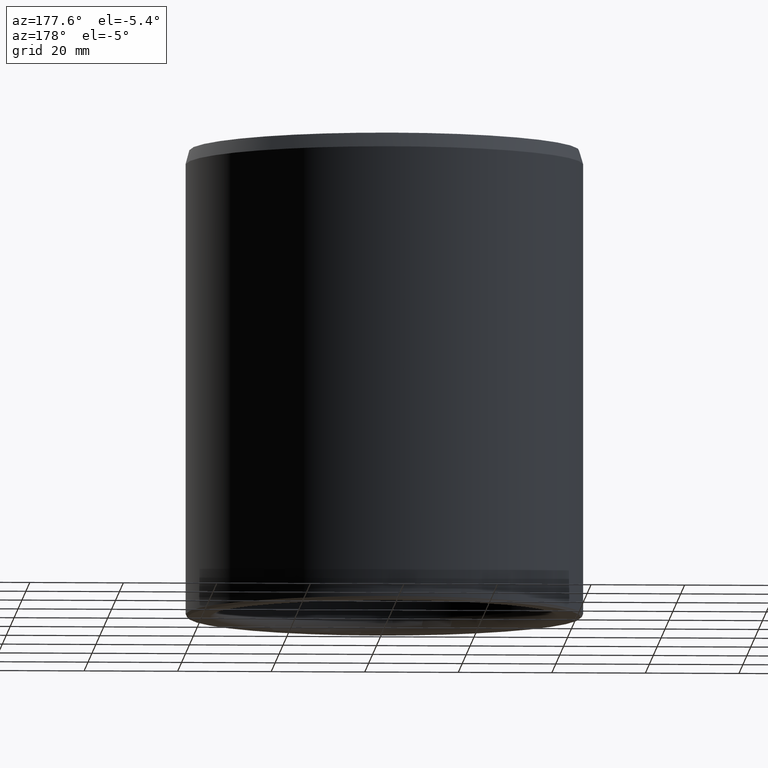
[diagram: clean part render]
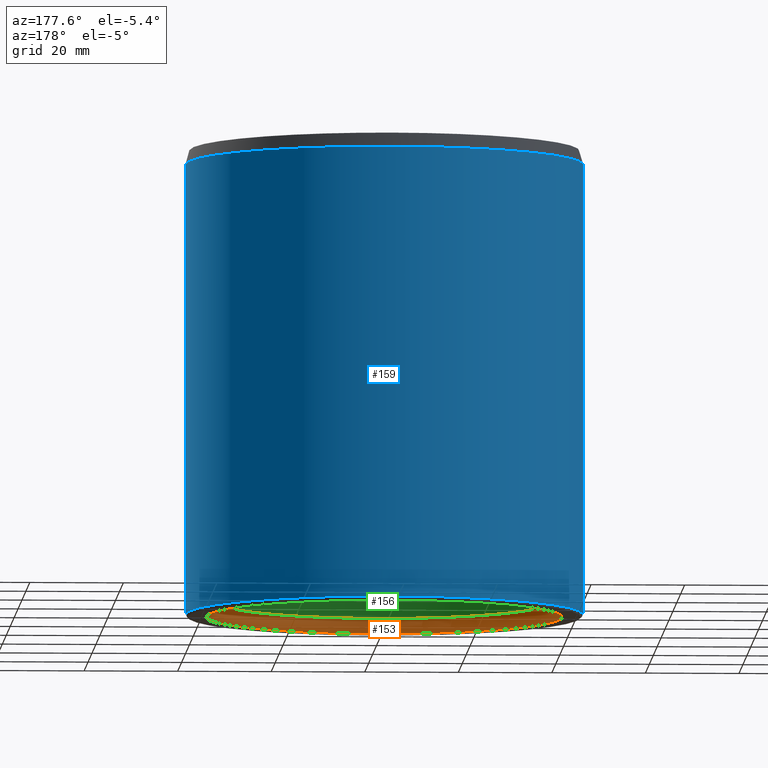
[diagram: same view with three faces highlighted in distinct colors, each labeled with its STEP entity id]
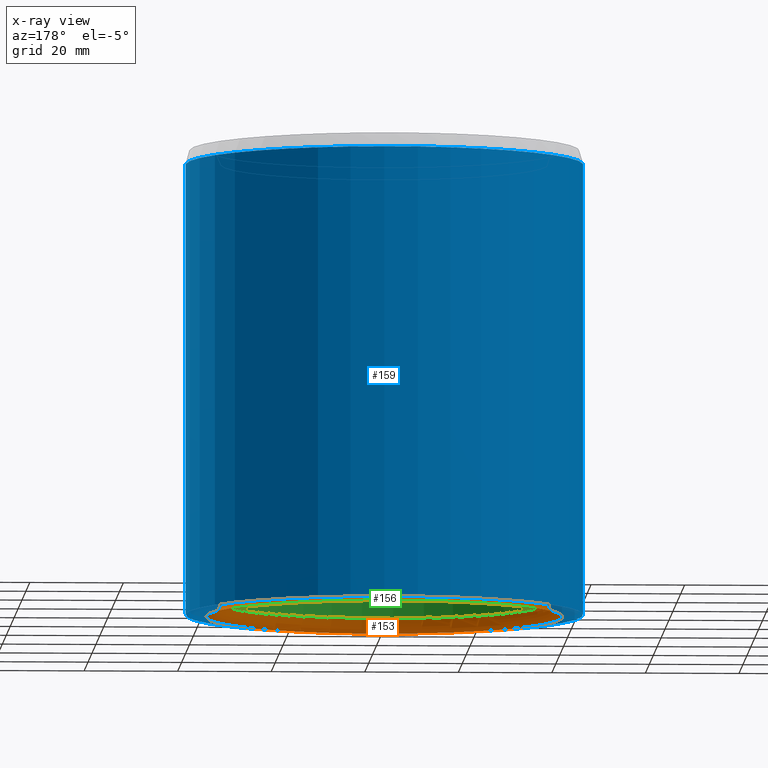
[diagram: x-ray of the same camera — body ghosted, the three highlighted faces saturated]
A machine part, auxiliary view with three faces highlighted in distinct colors.
The next image is the same camera in x-ray (body ghosted, the three faces saturated) — at least one of them is partly hidden behind the body in this view.
Their STEP definitions:

[orange] entity #153 — the highlighted toroidal blend (fillet) surface has major radius 38 mm and minor (blend) radius 3 mm.
#153=ADVANCED_FACE('',(#163,#164),#165,.T.);
#163=FACE_OUTER_BOUND('',#188,.T.);
#164=FACE_OUTER_BOUND('',#189,.T.);
#165=TOROIDAL_SURFACE('',#190,0.038,0.003);
#188=EDGE_LOOP('',(#212));
#189=EDGE_LOOP('',(#213));
#190=AXIS2_PLACEMENT_3D('',#214,#215,#216);
#212=ORIENTED_EDGE('',*,*,#252,.F.);
#213=ORIENTED_EDGE('',*,*,#253,.F.);
#214=CARTESIAN_POINT('',(0.0,1.83697019872103E-019,0.003));
#215=DIRECTION('',(0.0,-6.12323399573677E-017,-1.0));
#216=DIRECTION('',(0.0,1.0,-6.12323399573677E-017));
#252=EDGE_CURVE('',#260,#260,#261,.F.);
#253=EDGE_CURVE('',#262,#262,#263,.T.);
#260=VERTEX_POINT('',#276);
#261=CIRCLE('',#277,0.038);
#262=VERTEX_POINT('',#278);
#263=CIRCLE('',#279,0.035);
#276=CARTESIAN_POINT('',(0.0,0.038,-1.89314804938577E-018));
#277=AXIS2_PLACEMENT_3D('',#292,#293,#294);
#278=CARTESIAN_POINT('',(0.0,0.035,0.003));
#279=AXIS2_PLACEMENT_3D('',#295,#296,#297);
#292=CARTESIAN_POINT('',(0.0,2.40741243048404E-035,4.33680868994202E-019));
#293=DIRECTION('',(0.0,-6.12323399573677E-017,-1.0));
#294=DIRECTION('',(0.0,1.0,-6.12323399573677E-017));
#295=CARTESIAN_POINT('',(0.0,1.83697019872103E-019,0.003));
#296=DIRECTION('',(0.0,-6.12323399573677E-017,-1.0));
#297=DIRECTION('',(0.0,1.0,-6.12323399573677E-017));

[blue] entity #159 — the highlighted cylindrical surface (bore or boss wall) has radius 42.5 mm, axis along (0, -0, -1).
#159=ADVANCED_FACE('',(#181,#182),#183,.T.);
#181=FACE_OUTER_BOUND('',#206,.T.);
#182=FACE_OUTER_BOUND('',#207,.T.);
#183=CYLINDRICAL_SURFACE('',#208,0.0425);
#206=EDGE_LOOP('',(#242));
#207=EDGE_LOOP('',(#243));
#208=AXIS2_PLACEMENT_3D('',#244,#245,#246);
#242=ORIENTED_EDGE('',*,*,#259,.T.);
#243=ORIENTED_EDGE('',*,*,#258,.F.);
#244=CARTESIAN_POINT('',(0.0,0.0,0.0));
#245=DIRECTION('',(0.0,-6.12323399573677E-017,-1.0));
#246=DIRECTION('',(0.0,1.0,-6.12323399573677E-017));
#258=EDGE_CURVE('',#272,#272,#273,.T.);
#259=EDGE_CURVE('',#274,#274,#275,.T.);
#272=VERTEX_POINT('',#288);
#273=CIRCLE('',#289,0.0425);
#274=VERTEX_POINT('',#290);
#275=CIRCLE('',#291,0.0425);
#288=CARTESIAN_POINT('',(0.0425,0.0,0.0005));
#289=AXIS2_PLACEMENT_3D('',#310,#311,#312);
#290=CARTESIAN_POINT('',(0.0425,5.20417042793042E-018,0.097));
#291=AXIS2_PLACEMENT_3D('',#313,#314,#315);
#310=CARTESIAN_POINT('',(0.0,0.0,0.0005));
#311=DIRECTION('',(0.0,-6.12323399573677E-017,-1.0));
#312=DIRECTION('',(0.0,1.0,-6.12323399573677E-017));
#313=CARTESIAN_POINT('',(0.0,5.20417042793042E-018,0.097));
#314=DIRECTION('',(0.0,-6.12323399573677E-017,-1.0));
#315=DIRECTION('',(0.0,1.0,-6.12323399573677E-017));

[green] entity #156 — the highlighted cylindrical surface (bore or boss wall) has radius 35 mm, axis along (0, -0, -1).
#156=ADVANCED_FACE('',(#172,#173),#174,.F.);
#172=FACE_OUTER_BOUND('',#197,.T.);
#173=FACE_OUTER_BOUND('',#198,.T.);
#174=CYLINDRICAL_SURFACE('',#199,0.035);
#197=EDGE_LOOP('',(#227));
#198=EDGE_LOOP('',(#228));
#199=AXIS2_PLACEMENT_3D('',#229,#230,#231);
#227=ORIENTED_EDGE('',*,*,#253,.T.);
#228=ORIENTED_EDGE('',*,*,#256,.T.);
#229=CARTESIAN_POINT('',(0.0,0.0,0.0));
#230=DIRECTION('',(0.0,-6.12323399573677E-017,-1.0));
#231=DIRECTION('',(0.0,1.0,-6.12323399573677E-017));
#253=EDGE_CURVE('',#262,#262,#263,.T.);
#256=EDGE_CURVE('',#268,#268,#269,.T.);
#262=VERTEX_POINT('',#278);
#263=CIRCLE('',#279,0.035);
#268=VERTEX_POINT('',#284);
#269=CIRCLE('',#285,0.035);
#278=CARTESIAN_POINT('',(0.0,0.035,0.003));
#279=AXIS2_PLACEMENT_3D('',#295,#296,#297);
#284=CARTESIAN_POINT('',(0.0,-0.035,0.097));
#285=AXIS2_PLACEMENT_3D('',#304,#305,#306);
#295=CARTESIAN_POINT('',(0.0,1.83697019872103E-019,0.003));
#296=DIRECTION('',(0.0,-6.12323399573677E-017,-1.0));
#297=DIRECTION('',(0.0,1.0,-6.12323399573677E-017));
#304=CARTESIAN_POINT('',(0.0,5.93953697586466E-018,0.097));
#305=DIRECTION('',(0.0,6.12323399573677E-017,1.0));
#306=DIRECTION('',(0.0,-1.0,6.12323399573677E-017));